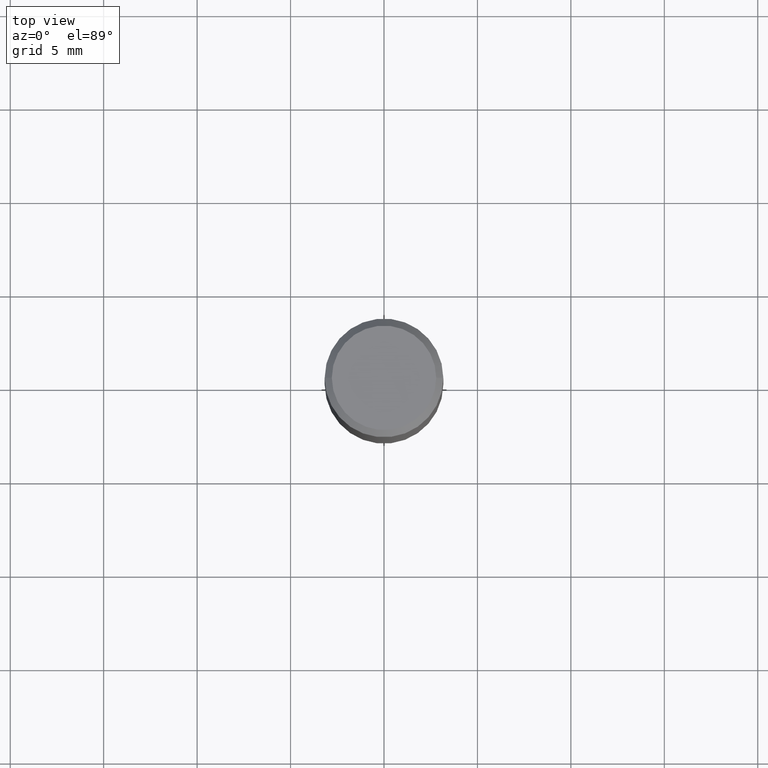
[diagram: clean part render]
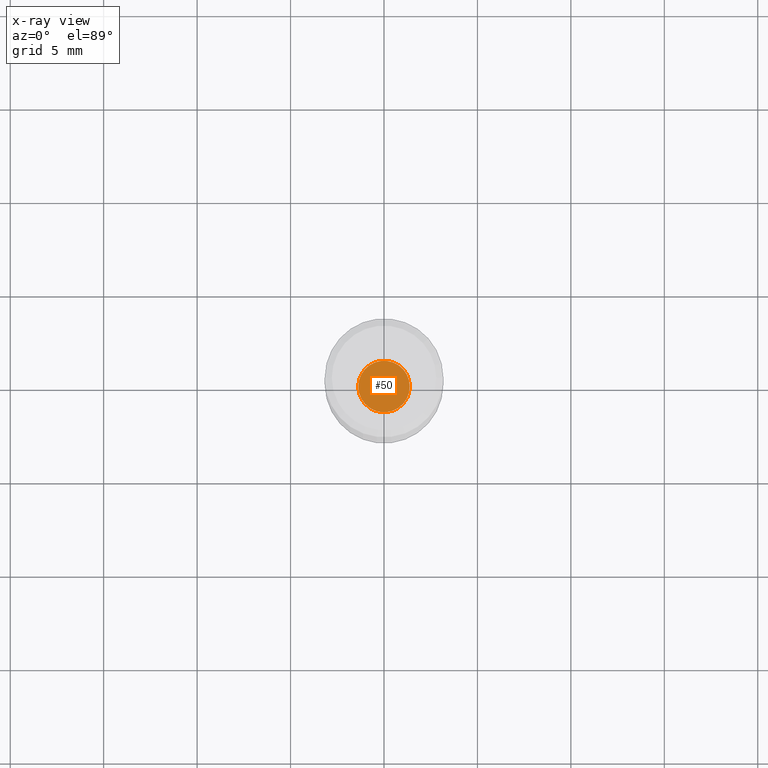
[diagram: x-ray — body ghosted, one internal face saturated and labeled with its STEP entity id]
A machine part, top view, then the same camera in x-ray: the body is ghosted and one INTERNAL B-rep face — a face not visible from any outside direction — is saturated and labeled: STEP entity #50.
In plain terms, the highlighted planar face has unit normal (-0, 0, 1).
Its self-contained STEP definition (entity closure, byte-faithful):
#15 = ORIENTED_EDGE ( 'NONE', *, *, #291, .F. ) ;
#21 = EDGE_CURVE ( 'NONE', #417, #261, #107, .T. ) ;
#50 = ADVANCED_FACE ( 'NONE', ( #267 ), #94, .F. ) ;
#60 = CIRCLE ( 'NONE', #137, 0.05419999999999999818 ) ;
#94 = PLANE ( 'NONE',  #136 ) ;
#107 = CIRCLE ( 'NONE', #199, 0.05419999999999999818 ) ;
#112 = CARTESIAN_POINT ( 'NONE',  ( 2.597087872168614833E-29, -3.707953181851420308E-15, -1.061999999999999833 ) ) ;
#136 = AXIS2_PLACEMENT_3D ( 'NONE', #236, #376, #271 ) ;
#137 = AXIS2_PLACEMENT_3D ( 'NONE', #112, #178, #438 ) ;
#160 = CARTESIAN_POINT ( 'NONE',  ( 2.597087872168614833E-29, -3.707953181851420308E-15, -1.061999999999999833 ) ) ;
#178 = DIRECTION ( 'NONE',  ( -2.445468806185136597E-29, 3.491481338843145583E-15, 1.000000000000000000 ) ) ;
#199 = AXIS2_PLACEMENT_3D ( 'NONE', #160, #446, #451 ) ;
#236 = CARTESIAN_POINT ( 'NONE',  ( 2.597087872168615393E-29, -3.707953181851421097E-15, -1.062000000000000055 ) ) ;
#261 = VERTEX_POINT ( 'NONE', #384 ) ;
#267 = FACE_OUTER_BOUND ( 'NONE', #416, .T. ) ;
#271 = DIRECTION ( 'NONE',  ( 1.000000000000000000, -6.982962677686265922E-15, 4.876176775795935793E-29 ) ) ;
#291 = EDGE_CURVE ( 'NONE', #261, #417, #60, .T. ) ;
#376 = DIRECTION ( 'NONE',  ( -2.438088387897960049E-29, 3.491481338843145188E-15, 1.000000000000000000 ) ) ;
#384 = CARTESIAN_POINT ( 'NONE',  ( -0.05419999999999999818, -3.320189791895334622E-15, -1.061999999999999833 ) ) ;
#412 = ORIENTED_EDGE ( 'NONE', *, *, #21, .F. ) ;
#416 = EDGE_LOOP ( 'NONE', ( #412, #15 ) ) ;
#417 = VERTEX_POINT ( 'NONE', #445 ) ;
#438 = DIRECTION ( 'NONE',  ( 1.000000000000000000, -6.982962677686268288E-15, 0.000000000000000000 ) ) ;
#445 = CARTESIAN_POINT ( 'NONE',  ( 0.05419999999999999818, -4.086429758982016481E-15, -1.061999999999999833 ) ) ;
#446 = DIRECTION ( 'NONE',  ( -2.445468806185136597E-29, 3.491481338843145583E-15, 1.000000000000000000 ) ) ;
#451 = DIRECTION ( 'NONE',  ( 1.000000000000000000, -6.982962677686268288E-15, 0.000000000000000000 ) ) ;